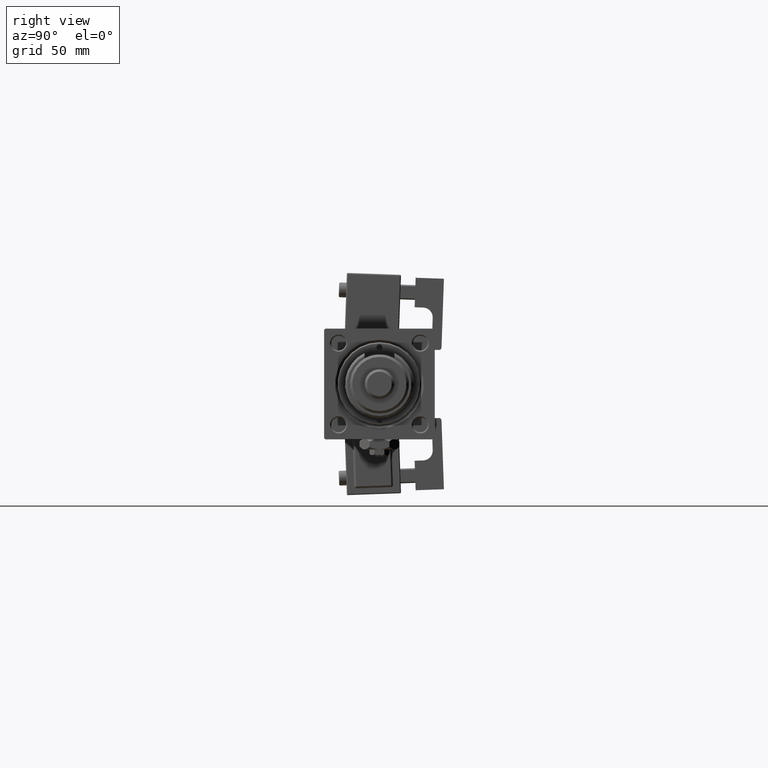
[diagram: clean part render]
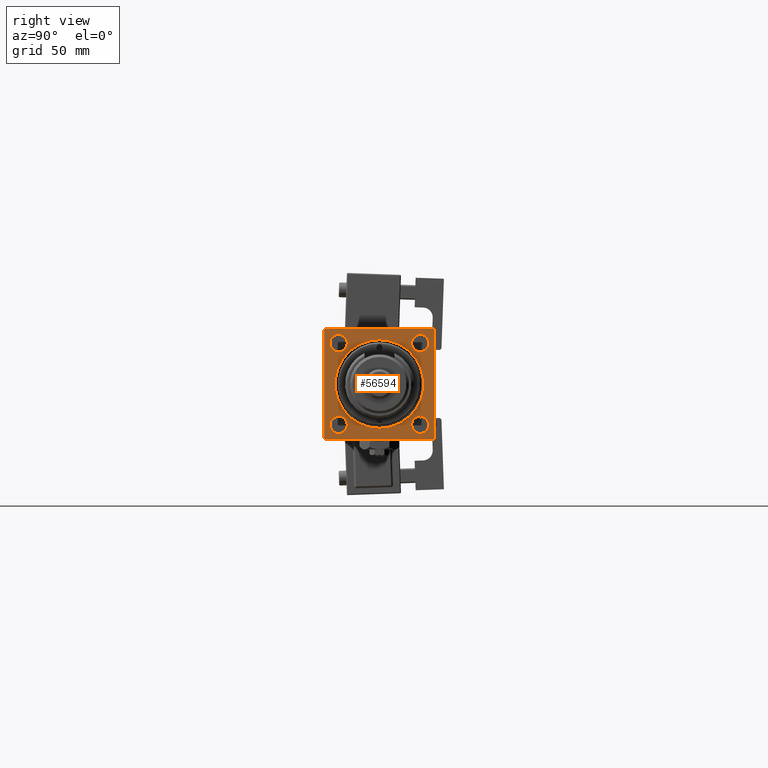
[diagram: same view with one face highlighted and labeled with its STEP entity id]
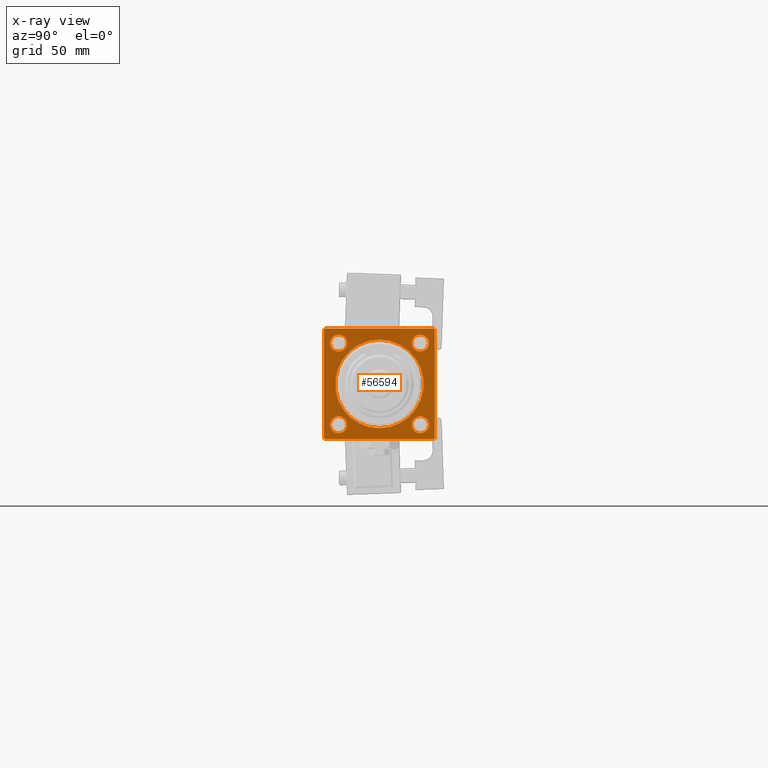
[diagram: x-ray of the same camera — body ghosted, the highlighted face saturated]
A machine part, right view. The second image highlights one B-rep face of the part: STEP entity #56594.
The next image is the same camera in x-ray: the body ghosted, the highlighted face saturated — about 0% of this face is hidden behind the body in this view.
In plain terms, the highlighted planar face has unit normal (-1, 0, 0).
Its self-contained STEP definition (entity closure, byte-faithful):
#120 = EDGE_CURVE ( 'NONE', #2055, #3104, #54083, .T. ) ;
#255 = VECTOR ( 'NONE', #6606, 1000.000000000000114 ) ;
#426 = VERTEX_POINT ( 'NONE', #31961 ) ;
#560 = ORIENTED_EDGE ( 'NONE', *, *, #120, .F. ) ;
#821 = FACE_BOUND ( 'NONE', #27675, .T. ) ;
#1516 = VERTEX_POINT ( 'NONE', #24863 ) ;
#2055 = VERTEX_POINT ( 'NONE', #54885 ) ;
#3104 = VERTEX_POINT ( 'NONE', #51813 ) ;
#3111 = EDGE_LOOP ( 'NONE', ( #49445, #52314, #560, #10701, #26285, #30774, #35805, #42716 ) ) ;
#3283 = EDGE_CURVE ( 'NONE', #50939, #1516, #49183, .T. ) ;
#3309 = VERTEX_POINT ( 'NONE', #50331 ) ;
#3587 = LINE ( 'NONE', #16090, #52687 ) ;
#4176 = CARTESIAN_POINT ( 'NONE',  ( 183.0000000000000000, 16.59999999999999787, 20.09999999999998010 ) ) ;
#5352 = EDGE_CURVE ( 'NONE', #17900, #25524, #55614, .T. ) ;
#5850 = EDGE_CURVE ( 'NONE', #426, #52974, #56530, .T. ) ;
#5887 = CARTESIAN_POINT ( 'NONE',  ( 183.0000000000000000, 22.50000000000000355, 22.00000000000000355 ) ) ;
#6259 = EDGE_CURVE ( 'NONE', #15032, #3309, #43630, .T. ) ;
#6308 = PLANE ( 'NONE',  #16005 ) ;
#6606 = DIRECTION ( 'NONE',  ( 0.000000000000000000, -0.7071067811865474617, 0.7071067811865474617 ) ) ;
#7210 = AXIS2_PLACEMENT_3D ( 'NONE', #26114, #34544, #44405 ) ;
#7771 = EDGE_LOOP ( 'NONE', ( #23511, #49656 ) ) ;
#8273 = AXIS2_PLACEMENT_3D ( 'NONE', #54444, #41396, #22531 ) ;
#8525 = CIRCLE ( 'NONE', #15923, 3.499999999999975131 ) ;
#9944 = DIRECTION ( 'NONE',  ( -1.000000000000000000, 0.000000000000000000, -0.000000000000000000 ) ) ;
#10393 = DIRECTION ( 'NONE',  ( -0.000000000000000000, 0.000000000000000000, 1.000000000000000000 ) ) ;
#10549 = EDGE_CURVE ( 'NONE', #28759, #49039, #3587, .T. ) ;
#10678 = FACE_OUTER_BOUND ( 'NONE', #3111, .T. ) ;
#10701 = ORIENTED_EDGE ( 'NONE', *, *, #17258, .T. ) ;
#11039 = CARTESIAN_POINT ( 'NONE',  ( 183.0000000000000000, -16.59999999999999787, 13.10000000000002096 ) ) ;
#11818 = LINE ( 'NONE', #37708, #37760 ) ;
#13816 = ORIENTED_EDGE ( 'NONE', *, *, #6259, .T. ) ;
#13900 = DIRECTION ( 'NONE',  ( -1.000000000000000000, 0.000000000000000000, -0.000000000000000000 ) ) ;
#13910 = EDGE_CURVE ( 'NONE', #1516, #50939, #49911, .T. ) ;
#14005 = DIRECTION ( 'NONE',  ( 0.000000000000000000, -1.000000000000000000, -7.709882115452476934E-17 ) ) ;
#14837 = AXIS2_PLACEMENT_3D ( 'NONE', #48663, #16697, #17858 ) ;
#15032 = VERTEX_POINT ( 'NONE', #26625 ) ;
#15923 = AXIS2_PLACEMENT_3D ( 'NONE', #45825, #41475, #49332 ) ;
#16005 = AXIS2_PLACEMENT_3D ( 'NONE', #27545, #19686, #10393 ) ;
#16090 = CARTESIAN_POINT ( 'NONE',  ( 183.0000000000000000, 22.50000000000000355, 22.50000000000000355 ) ) ;
#16169 = DIRECTION ( 'NONE',  ( 0.000000000000000000, 0.000000000000000000, 1.000000000000000000 ) ) ;
#16368 = CARTESIAN_POINT ( 'NONE',  ( 183.0000000000000000, -22.49999999999999645, 22.49999999999999289 ) ) ;
#16697 = DIRECTION ( 'NONE',  ( -1.000000000000000000, 0.000000000000000000, -0.000000000000000000 ) ) ;
#16707 = VERTEX_POINT ( 'NONE', #49419 ) ;
#16787 = ORIENTED_EDGE ( 'NONE', *, *, #33660, .T. ) ;
#16792 = DIRECTION ( 'NONE',  ( 0.000000000000000000, 0.000000000000000000, 1.000000000000000000 ) ) ;
#17248 = CIRCLE ( 'NONE', #28372, 18.00000000000001421 ) ;
#17258 = EDGE_CURVE ( 'NONE', #2055, #49039, #21624, .T. ) ;
#17858 = DIRECTION ( 'NONE',  ( 0.000000000000000000, 0.000000000000000000, 1.000000000000000000 ) ) ;
#17900 = VERTEX_POINT ( 'NONE', #42346 ) ;
#18791 = ORIENTED_EDGE ( 'NONE', *, *, #5352, .T. ) ;
#19253 = VECTOR ( 'NONE', #55715, 1000.000000000000000 ) ;
#19444 = ORIENTED_EDGE ( 'NONE', *, *, #45926, .T. ) ;
#19686 = DIRECTION ( 'NONE',  ( -1.000000000000000000, 0.000000000000000000, -0.000000000000000000 ) ) ;
#20042 = CARTESIAN_POINT ( 'NONE',  ( 183.0000000000000000, 16.59999999999999787, -13.10000000000002807 ) ) ;
#20970 = FACE_BOUND ( 'NONE', #7771, .T. ) ;
#21368 = EDGE_LOOP ( 'NONE', ( #47049, #44268 ) ) ;
#21624 = LINE ( 'NONE', #30645, #29675 ) ;
#21722 = DIRECTION ( 'NONE',  ( 0.000000000000000000, 0.000000000000000000, 1.000000000000000000 ) ) ;
#22531 = DIRECTION ( 'NONE',  ( 0.000000000000000000, 0.000000000000000000, 1.000000000000000000 ) ) ;
#23511 = ORIENTED_EDGE ( 'NONE', *, *, #3283, .T. ) ;
#24321 = FACE_BOUND ( 'NONE', #21368, .T. ) ;
#24863 = CARTESIAN_POINT ( 'NONE',  ( 183.0000000000000000, -16.59999999999999787, 20.09999999999997300 ) ) ;
#25007 = VECTOR ( 'NONE', #34115, 1000.000000000000000 ) ;
#25524 = VERTEX_POINT ( 'NONE', #4176 ) ;
#25883 = VECTOR ( 'NONE', #14005, 1000.000000000000000 ) ;
#26114 = CARTESIAN_POINT ( 'NONE',  ( 183.0000000000000000, -16.59999999999999787, 16.59999999999999787 ) ) ;
#26285 = ORIENTED_EDGE ( 'NONE', *, *, #10549, .F. ) ;
#26331 = EDGE_CURVE ( 'NONE', #28759, #43912, #32802, .T. ) ;
#26625 = CARTESIAN_POINT ( 'NONE',  ( 183.0000000000000000, 0.000000000000000000, -18.00000000000001421 ) ) ;
#26661 = VECTOR ( 'NONE', #44881, 1000.000000000000000 ) ;
#26874 = CARTESIAN_POINT ( 'NONE',  ( 183.0000000000000000, 22.50000000000000355, 22.50000000000000355 ) ) ;
#27158 = LINE ( 'NONE', #26874, #26661 ) ;
#27545 = CARTESIAN_POINT ( 'NONE',  ( 183.0000000000000000, 0.000000000000000000, 0.000000000000000000 ) ) ;
#27675 = EDGE_LOOP ( 'NONE', ( #18791, #32006 ) ) ;
#28372 = AXIS2_PLACEMENT_3D ( 'NONE', #46409, #51057, #16169 ) ;
#28759 = VERTEX_POINT ( 'NONE', #5887 ) ;
#29675 = VECTOR ( 'NONE', #48351, 1000.000000000000114 ) ;
#29930 = CARTESIAN_POINT ( 'NONE',  ( 183.0000000000000000, 16.59999999999999787, 16.60000000000000497 ) ) ;
#30645 = CARTESIAN_POINT ( 'NONE',  ( 183.0000000000000000, 22.50000000000000355, -21.99999999999999645 ) ) ;
#30774 = ORIENTED_EDGE ( 'NONE', *, *, #26331, .T. ) ;
#31537 = AXIS2_PLACEMENT_3D ( 'NONE', #43516, #57416, #21722 ) ;
#31917 = VERTEX_POINT ( 'NONE', #38797 ) ;
#31961 = CARTESIAN_POINT ( 'NONE',  ( 183.0000000000000000, 16.59999999999999787, -20.09999999999998010 ) ) ;
#32006 = ORIENTED_EDGE ( 'NONE', *, *, #45346, .T. ) ;
#32485 = VERTEX_POINT ( 'NONE', #39599 ) ;
#32802 = LINE ( 'NONE', #41503, #255 ) ;
#33114 = ORIENTED_EDGE ( 'NONE', *, *, #54841, .T. ) ;
#33660 = EDGE_CURVE ( 'NONE', #3309, #15032, #17248, .T. ) ;
#34115 = DIRECTION ( 'NONE',  ( 0.000000000000000000, 0.000000000000000000, -1.000000000000000000 ) ) ;
#34544 = DIRECTION ( 'NONE',  ( -1.000000000000000000, 0.000000000000000000, -0.000000000000000000 ) ) ;
#35262 = AXIS2_PLACEMENT_3D ( 'NONE', #29930, #51138, #55757 ) ;
#35715 = DIRECTION ( 'NONE',  ( 0.000000000000000000, 0.000000000000000000, 1.000000000000000000 ) ) ;
#35805 = ORIENTED_EDGE ( 'NONE', *, *, #42722, .T. ) ;
#37026 = CIRCLE ( 'NONE', #8273, 3.499999999999975131 ) ;
#37708 = CARTESIAN_POINT ( 'NONE',  ( 183.0000000000000000, -22.49999999999999645, 21.99999999999999289 ) ) ;
#37760 = VECTOR ( 'NONE', #42075, 1000.000000000000114 ) ;
#38704 = FACE_BOUND ( 'NONE', #49254, .T. ) ;
#38797 = CARTESIAN_POINT ( 'NONE',  ( 183.0000000000000000, -16.60000000000000497, -20.09999999999998010 ) ) ;
#39019 = CIRCLE ( 'NONE', #50119, 3.499999999999975131 ) ;
#39599 = CARTESIAN_POINT ( 'NONE',  ( 183.0000000000000000, -16.60000000000000497, -13.10000000000002807 ) ) ;
#39614 = CARTESIAN_POINT ( 'NONE',  ( 183.0000000000000000, -22.49999999999999645, 21.99999999999999289 ) ) ;
#41396 = DIRECTION ( 'NONE',  ( -1.000000000000000000, 0.000000000000000000, -0.000000000000000000 ) ) ;
#41475 = DIRECTION ( 'NONE',  ( -1.000000000000000000, 0.000000000000000000, -0.000000000000000000 ) ) ;
#41503 = CARTESIAN_POINT ( 'NONE',  ( 183.0000000000000000, 22.00000000000000355, 22.50000000000000355 ) ) ;
#41618 = AXIS2_PLACEMENT_3D ( 'NONE', #42673, #43246, #16792 ) ;
#42075 = DIRECTION ( 'NONE',  ( -0.000000000000000000, -0.7071067811865474617, -0.7071067811865474617 ) ) ;
#42321 = EDGE_CURVE ( 'NONE', #16707, #46209, #11818, .T. ) ;
#42346 = CARTESIAN_POINT ( 'NONE',  ( 183.0000000000000000, 16.59999999999999787, 13.10000000000002807 ) ) ;
#42673 = CARTESIAN_POINT ( 'NONE',  ( 183.0000000000000000, 16.59999999999999787, 16.60000000000000497 ) ) ;
#42716 = ORIENTED_EDGE ( 'NONE', *, *, #42321, .T. ) ;
#42722 = EDGE_CURVE ( 'NONE', #43912, #16707, #27158, .T. ) ;
#42967 = CARTESIAN_POINT ( 'NONE',  ( 183.0000000000000000, -21.99999999999996803, -22.50000000000000000 ) ) ;
#43246 = DIRECTION ( 'NONE',  ( -1.000000000000000000, 0.000000000000000000, -0.000000000000000000 ) ) ;
#43441 = EDGE_CURVE ( 'NONE', #49555, #3104, #52247, .T. ) ;
#43516 = CARTESIAN_POINT ( 'NONE',  ( 183.0000000000000000, 16.59999999999999787, -16.60000000000000497 ) ) ;
#43630 = CIRCLE ( 'NONE', #14837, 18.00000000000001421 ) ;
#43912 = VERTEX_POINT ( 'NONE', #53044 ) ;
#44268 = ORIENTED_EDGE ( 'NONE', *, *, #52350, .T. ) ;
#44405 = DIRECTION ( 'NONE',  ( 0.000000000000000000, 0.000000000000000000, 1.000000000000000000 ) ) ;
#44712 = CARTESIAN_POINT ( 'NONE',  ( 183.0000000000000000, 16.59999999999999787, -16.60000000000000497 ) ) ;
#44881 = DIRECTION ( 'NONE',  ( 0.000000000000000000, -1.000000000000000000, -2.312964634635742957E-16 ) ) ;
#45268 = FACE_BOUND ( 'NONE', #54718, .T. ) ;
#45346 = EDGE_CURVE ( 'NONE', #25524, #17900, #55515, .T. ) ;
#45825 = CARTESIAN_POINT ( 'NONE',  ( 183.0000000000000000, -16.60000000000000497, -16.60000000000000497 ) ) ;
#45926 = EDGE_CURVE ( 'NONE', #31917, #32485, #37026, .T. ) ;
#46209 = VERTEX_POINT ( 'NONE', #39614 ) ;
#46409 = CARTESIAN_POINT ( 'NONE',  ( 183.0000000000000000, 0.000000000000000000, 0.000000000000000000 ) ) ;
#47049 = ORIENTED_EDGE ( 'NONE', *, *, #5850, .T. ) ;
#48144 = AXIS2_PLACEMENT_3D ( 'NONE', #54954, #9944, #50606 ) ;
#48351 = DIRECTION ( 'NONE',  ( -0.000000000000000000, 0.7071067811865474617, 0.7071067811865474617 ) ) ;
#48663 = CARTESIAN_POINT ( 'NONE',  ( 183.0000000000000000, 0.000000000000000000, 0.000000000000000000 ) ) ;
#49039 = VERTEX_POINT ( 'NONE', #50580 ) ;
#49183 = CIRCLE ( 'NONE', #48144, 3.499999999999975131 ) ;
#49254 = EDGE_LOOP ( 'NONE', ( #19444, #33114 ) ) ;
#49316 = CARTESIAN_POINT ( 'NONE',  ( 183.0000000000000000, -22.49999999999999645, -21.99999999999995026 ) ) ;
#49332 = DIRECTION ( 'NONE',  ( 0.000000000000000000, 0.000000000000000000, 1.000000000000000000 ) ) ;
#49419 = CARTESIAN_POINT ( 'NONE',  ( 183.0000000000000000, -21.99999999999998224, 22.49999999999999289 ) ) ;
#49445 = ORIENTED_EDGE ( 'NONE', *, *, #51529, .T. ) ;
#49555 = VERTEX_POINT ( 'NONE', #49316 ) ;
#49656 = ORIENTED_EDGE ( 'NONE', *, *, #13910, .T. ) ;
#49911 = CIRCLE ( 'NONE', #7210, 3.499999999999975131 ) ;
#50119 = AXIS2_PLACEMENT_3D ( 'NONE', #44712, #13900, #35715 ) ;
#50331 = CARTESIAN_POINT ( 'NONE',  ( 183.0000000000000000, 2.204364238465237794E-15, 18.00000000000001421 ) ) ;
#50580 = CARTESIAN_POINT ( 'NONE',  ( 183.0000000000000000, 22.50000000000000355, -21.99999999999998224 ) ) ;
#50606 = DIRECTION ( 'NONE',  ( 0.000000000000000000, 0.000000000000000000, 1.000000000000000000 ) ) ;
#50939 = VERTEX_POINT ( 'NONE', #11039 ) ;
#51057 = DIRECTION ( 'NONE',  ( -1.000000000000000000, 0.000000000000000000, -0.000000000000000000 ) ) ;
#51138 = DIRECTION ( 'NONE',  ( -1.000000000000000000, 0.000000000000000000, -0.000000000000000000 ) ) ;
#51529 = EDGE_CURVE ( 'NONE', #46209, #49555, #56159, .T. ) ;
#51813 = CARTESIAN_POINT ( 'NONE',  ( 183.0000000000000000, -21.99999999999995381, -22.50000000000000000 ) ) ;
#52111 = DIRECTION ( 'NONE',  ( 0.000000000000000000, 0.000000000000000000, -1.000000000000000000 ) ) ;
#52247 = LINE ( 'NONE', #42967, #19253 ) ;
#52314 = ORIENTED_EDGE ( 'NONE', *, *, #43441, .T. ) ;
#52350 = EDGE_CURVE ( 'NONE', #52974, #426, #39019, .T. ) ;
#52687 = VECTOR ( 'NONE', #52111, 1000.000000000000000 ) ;
#52959 = CARTESIAN_POINT ( 'NONE',  ( 183.0000000000000000, 22.50000000000000355, -22.49999999999999645 ) ) ;
#52974 = VERTEX_POINT ( 'NONE', #20042 ) ;
#53044 = CARTESIAN_POINT ( 'NONE',  ( 183.0000000000000000, 22.00000000000000355, 22.50000000000000355 ) ) ;
#54083 = LINE ( 'NONE', #52959, #25883 ) ;
#54444 = CARTESIAN_POINT ( 'NONE',  ( 183.0000000000000000, -16.60000000000000497, -16.60000000000000497 ) ) ;
#54718 = EDGE_LOOP ( 'NONE', ( #13816, #16787 ) ) ;
#54841 = EDGE_CURVE ( 'NONE', #32485, #31917, #8525, .T. ) ;
#54885 = CARTESIAN_POINT ( 'NONE',  ( 183.0000000000000000, 22.00000000000000355, -22.49999999999999645 ) ) ;
#54954 = CARTESIAN_POINT ( 'NONE',  ( 183.0000000000000000, -16.59999999999999787, 16.59999999999999787 ) ) ;
#55515 = CIRCLE ( 'NONE', #41618, 3.499999999999975131 ) ;
#55614 = CIRCLE ( 'NONE', #35262, 3.499999999999975131 ) ;
#55715 = DIRECTION ( 'NONE',  ( 0.000000000000000000, 0.7071067811865426878, -0.7071067811865524577 ) ) ;
#55757 = DIRECTION ( 'NONE',  ( 0.000000000000000000, 0.000000000000000000, 1.000000000000000000 ) ) ;
#56159 = LINE ( 'NONE', #16368, #25007 ) ;
#56530 = CIRCLE ( 'NONE', #31537, 3.499999999999975131 ) ;
#56594 = ADVANCED_FACE ( 'NONE', ( #821, #20970, #38704, #24321, #45268, #10678 ), #6308, .F. ) ;
#57416 = DIRECTION ( 'NONE',  ( -1.000000000000000000, 0.000000000000000000, -0.000000000000000000 ) ) ;